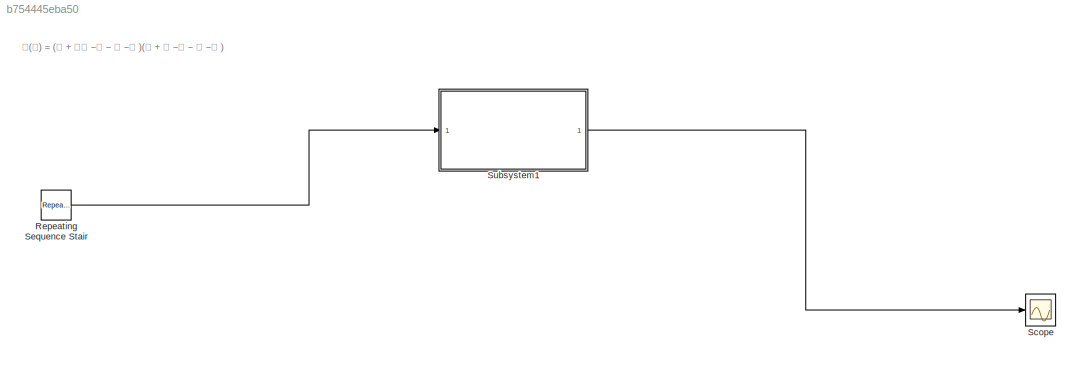
MODEL slx_b754445eba50
KIND model
CONFIG AbsTol = auto
CONFIG EnableMultiTasking = off
CONFIG FixedStep = auto
CONFIG MaxStep = auto
CONFIG MinStep = auto
CONFIG RelTol = 1e-3
CONFIG SampleTimeConstraint = Unconstrained
CONFIG SolverName = VariableStepAuto
CONFIG StartTime = 0.0
CONFIG StopTime = 10.0
BLOCK [Reference] Repeating Sequence Stair  REF=simulink/Sources/Repeating
Sequence
Stair
  Ports = [0, 1]
  SourceBlock = simulink/Sources/Repeating\nSequence\nStair
  SourceProductBaseCode = SL
  SourceType = Repeating Sequence Stair
BLOCK [Scope] Scope
  Floating = off
  NumInputPorts = 1
  Ports = [1]
  ScopeSpecificationString = Simulink.scopes.TimeScopeBlockCfg('CurrentConfiguration', extmgr.ConfigurationSet(extmgr.Configuration('Core','General UI',true),extmgr.Configuration('Core','Source UI',true),extmgr.Configuration('Sources','WiredSimulink',true),extmgr.Configuration('Visuals','Time Domain',true,'SerializedDisplays',{struct('MinYLimReal','-0.75','MaxYLimReal','16.75','YLabelReal','','MinYLimMag','0.00000','MaxYLimMa...<+1345ch>
BLOCK [ModelReference] Subsystem1
  ModelNameDialog = Subsystem1
  ModelReferenceVersion = 1.6
  Ports = [1, 1]
ANNOTATION (root): 𝐇(𝐳) = (𝟏 + 𝟐𝐳 −𝟏 − 𝐳 −𝟐 )(𝟏 + 𝐳 −𝟏 − 𝐳 −𝟐 )
LINE Repeating Sequence Stair:1 -> Subsystem1:1
LINE Subsystem1:1 -> Scope:1
